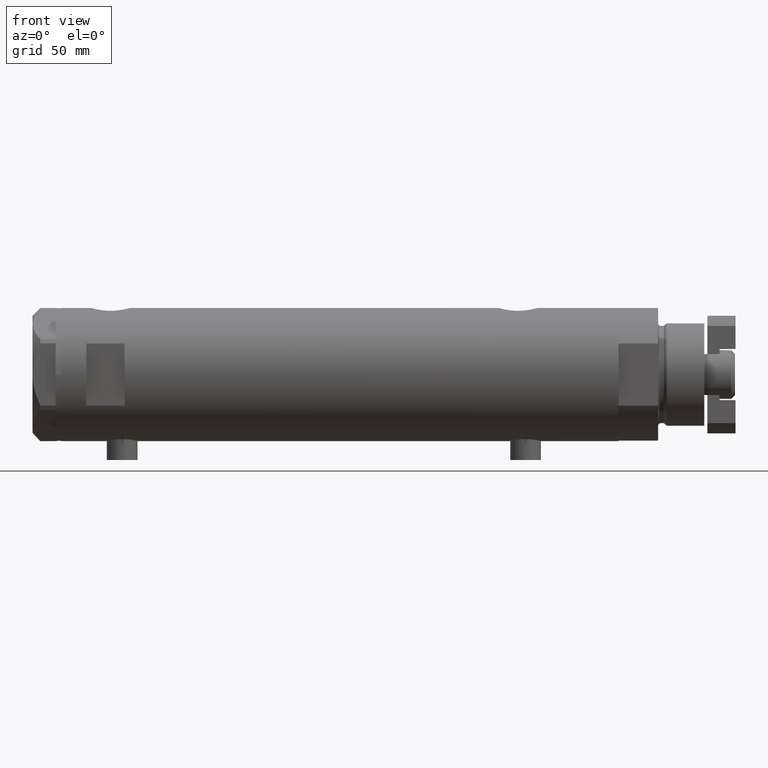
[diagram: clean part render]
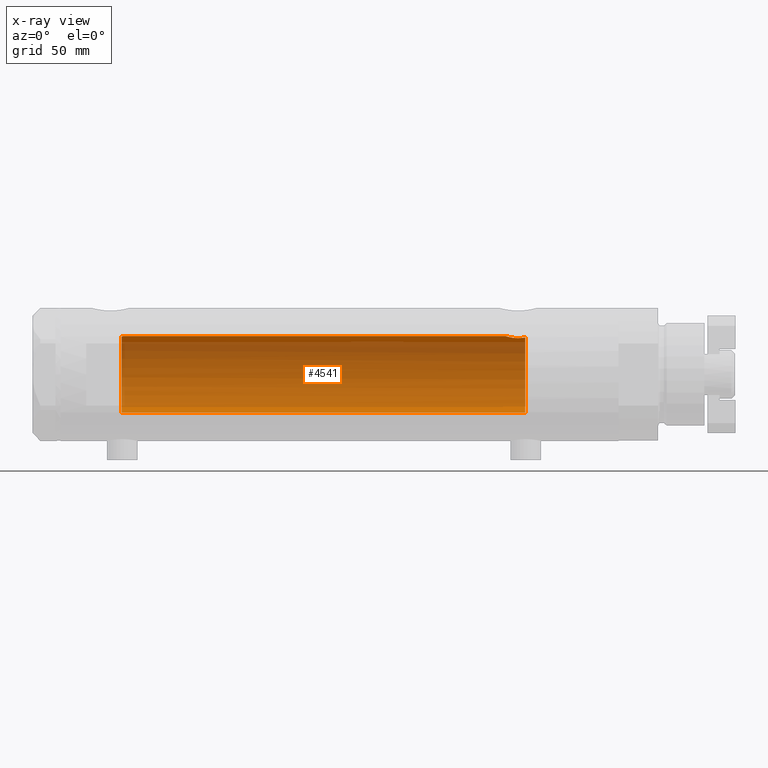
[diagram: x-ray — body ghosted, one internal face saturated and labeled with its STEP entity id]
A machine part, front view, then the same camera in x-ray: the body is ghosted and one INTERNAL B-rep face — a face not visible from any outside direction — is saturated and labeled: STEP entity #4541.
In plain terms, the highlighted cylindrical surface (partial cylindrical patch) has radius 15 mm, axis along (1, 0, -0).
Its self-contained STEP definition (entity closure, byte-faithful):
#4 = CARTESIAN_POINT ( 'NONE',  ( 14.25987224063200465, 4.654266980155758127, -68.31645838593742326 ) ) ;
#28 = CIRCLE ( 'NONE', #1285, 15.00000000000000000 ) ;
#58 = CARTESIAN_POINT ( 'NONE',  ( 15.00000000000000000, 1.836970198721029589E-15, 108.9499999999999886 ) ) ;
#98 = CARTESIAN_POINT ( 'NONE',  ( -15.00000000000000000, 0.000000000000000000, -72.54999999999999716 ) ) ;
#332 = CARTESIAN_POINT ( 'NONE',  ( 14.39420242489971358, 4.221147702577654037, -72.17871871185444377 ) ) ;
#592 = CARTESIAN_POINT ( 'NONE',  ( 14.81695028448457130, 2.344053258630414138, -65.48122781573721340 ) ) ;
#610 = CARTESIAN_POINT ( 'NONE',  ( 14.87714698525761214, 1.924825815456619571, 84.97761219789977361 ) ) ;
#691 = ORIENTED_EDGE ( 'NONE', *, *, #3594, .F. ) ;
#816 = AXIS2_PLACEMENT_3D ( 'NONE', #4240, #3015, #3039 ) ;
#910 = CARTESIAN_POINT ( 'NONE',  ( 14.19413554982521575, 4.851369549374614287, -69.17746179061400369 ) ) ;
#943 = CARTESIAN_POINT ( 'NONE',  ( 14.82638779339053947, 2.275571356824483082, 85.15000000000000568 ) ) ;
#1015 = VERTEX_POINT ( 'NONE', #98 ) ;
#1144 = CARTESIAN_POINT ( 'NONE',  ( -15.00000000000000000, 0.000000000000000000, 108.9499999999999886 ) ) ;
#1194 = CARTESIAN_POINT ( 'NONE',  ( 14.33334483745703025, 4.423389780079200584, -71.78724945987950434 ) ) ;
#1221 = CARTESIAN_POINT ( 'NONE',  ( 14.42780822725581125, 4.105572710089623101, -72.36940228115442153 ) ) ;
#1272 = CARTESIAN_POINT ( 'NONE',  ( 14.49939476291675078, 3.855488469592456280, -66.74998822577916258 ) ) ;
#1285 = AXIS2_PLACEMENT_3D ( 'NONE', #1375, #5006, #2047 ) ;
#1328 = CARTESIAN_POINT ( 'NONE',  ( 14.23996709707016173, 4.714409263334270683, -68.52876674044655658 ) ) ;
#1355 = B_SPLINE_CURVE_WITH_KNOTS ( 'NONE', 3,
 ( #5384, #1973, #610, #3218, #2802, #2756, #2340, #4947 ),
 .UNSPECIFIED., .F., .F.,
 ( 4, 2, 2, 4 ),
 ( 0.02826119741494477131, 0.02885214443185063482, 0.02944309144875649834, 0.03062498548256823577 ),
 .UNSPECIFIED. ) ;
#1375 = CARTESIAN_POINT ( 'NONE',  ( 0.000000000000000000, 0.000000000000000000, -72.54999999999999716 ) ) ;
#1387 = VECTOR ( 'NONE', #5515, 1000.000000000000000 ) ;
#1402 = CARTESIAN_POINT ( 'NONE',  ( 14.99509227038106118, 0.4430293709771145894, -64.90006686301529726 ) ) ;
#1454 = DIRECTION ( 'NONE',  ( -1.000000000000000000, 0.000000000000000000, 0.000000000000000000 ) ) ;
#1459 = CARTESIAN_POINT ( 'NONE',  ( 14.84719462287499780, 2.145357993387301931, -65.37798666051604357 ) ) ;
#1629 = CIRCLE ( 'NONE', #816, 15.00000000000000000 ) ;
#1692 = VERTEX_POINT ( 'NONE', #3663 ) ;
#1697 = LINE ( 'NONE', #1144, #1387 ) ;
#1721 = CARTESIAN_POINT ( 'NONE',  ( 15.00000000000000178, 0.2215872191885703835, -64.88500000000000512 ) ) ;
#1797 = DIRECTION ( 'NONE',  ( -0.000000000000000000, -0.000000000000000000, -1.000000000000000000 ) ) ;
#1924 = VERTEX_POINT ( 'NONE', #3829 ) ;
#1973 = CARTESIAN_POINT ( 'NONE',  ( 14.85285765243877343, 2.103108122960808402, 85.05873200114291421 ) ) ;
#2047 = DIRECTION ( 'NONE',  ( -1.000000000000000000, 0.000000000000000000, 0.000000000000000000 ) ) ;
#2106 = CARTESIAN_POINT ( 'NONE',  ( 14.46277203719950855, 3.978470183374510416, -72.54999999999999716 ) ) ;
#2175 = EDGE_CURVE ( 'NONE', #1015, #1692, #28, .T. ) ;
#2177 = CARTESIAN_POINT ( 'NONE',  ( 14.33601656325283358, 4.414747171699213268, -67.69405684818109137 ) ) ;
#2340 = CARTESIAN_POINT ( 'NONE',  ( 15.00000000000000533, 0.3998316629799377186, 84.58500000000003638 ) ) ;
#2469 = VERTEX_POINT ( 'NONE', #943 ) ;
#2600 = ORIENTED_EDGE ( 'NONE', *, *, #2711, .T. ) ;
#2638 = CARTESIAN_POINT ( 'NONE',  ( 14.19789541567449831, 4.839422427565549079, -70.29531557750244986 ) ) ;
#2651 = VECTOR ( 'NONE', #1797, 1000.000000000000000 ) ;
#2711 = EDGE_CURVE ( 'NONE', #3459, #1015, #1697, .T. ) ;
#2756 = CARTESIAN_POINT ( 'NONE',  ( 14.98404286071220781, 0.7911628595372716122, 84.63357750803341162 ) ) ;
#2802 = CARTESIAN_POINT ( 'NONE',  ( 14.93895715383719569, 1.365440931094927590, 84.77638192761230584 ) ) ;
#2939 = EDGE_CURVE ( 'NONE', #1924, #4312, #3940, .T. ) ;
#3015 = DIRECTION ( 'NONE',  ( 0.000000000000000000, 0.000000000000000000, 1.000000000000000000 ) ) ;
#3039 = DIRECTION ( 'NONE',  ( 1.000000000000000000, 0.000000000000000000, 0.000000000000000000 ) ) ;
#3053 = CARTESIAN_POINT ( 'NONE',  ( 14.72004460873233000, 2.909758128378253428, -65.82614485536704763 ) ) ;
#3194 = EDGE_CURVE ( 'NONE', #4312, #1692, #4533, .T. ) ;
#3218 = CARTESIAN_POINT ( 'NONE',  ( 14.92022334814851980, 1.556082286439816276, 84.83634472570265928 ) ) ;
#3456 = CARTESIAN_POINT ( 'NONE',  ( 14.18274079043653479, 4.883732009304972088, -69.63167541567706564 ) ) ;
#3459 = VERTEX_POINT ( 'NONE', #5329 ) ;
#3507 = AXIS2_PLACEMENT_3D ( 'NONE', #3635, #4026, #1454 ) ;
#3548 = CARTESIAN_POINT ( 'NONE',  ( 15.00000000000000000, 5.959273473684245944E-16, -64.88500000000000512 ) ) ;
#3565 = ORIENTED_EDGE ( 'NONE', *, *, #2939, .F. ) ;
#3594 = EDGE_CURVE ( 'NONE', #2469, #1924, #1355, .T. ) ;
#3635 = CARTESIAN_POINT ( 'NONE',  ( 0.000000000000000000, 0.000000000000000000, 108.9499999999999886 ) ) ;
#3642 = CARTESIAN_POINT ( 'NONE',  ( 14.97547159671690942, 0.8856171163179419326, -64.96107436056318818 ) ) ;
#3663 = CARTESIAN_POINT ( 'NONE',  ( 14.46277203719950855, 3.978470183374510416, -72.54999999999999716 ) ) ;
#3829 = CARTESIAN_POINT ( 'NONE',  ( 15.00000000000000000, 0.000000000000000000, 84.58500000000000796 ) ) ;
#3939 = CARTESIAN_POINT ( 'NONE',  ( 14.30778609824508329, 4.504821240468947607, -67.89964104205775186 ) ) ;
#3940 = LINE ( 'NONE', #58, #2651 ) ;
#3970 = CARTESIAN_POINT ( 'NONE',  ( 14.25831405531605078, 4.659025730769710272, -71.16798855846091953 ) ) ;
#4001 = EDGE_LOOP ( 'NONE', ( #3565, #691, #5188, #2600, #5457, #5117 ) ) ;
#4026 = DIRECTION ( 'NONE',  ( -0.000000000000000000, -0.000000000000000000, -1.000000000000000000 ) ) ;
#4053 = FACE_OUTER_BOUND ( 'NONE', #4001, .T. ) ;
#4096 = CARTESIAN_POINT ( 'NONE',  ( 14.96070684509190940, 1.105917936056764583, -65.00719211967314948 ) ) ;
#4240 = CARTESIAN_POINT ( 'NONE',  ( 0.000000000000000000, 0.000000000000000000, 85.15000000000000568 ) ) ;
#4312 = VERTEX_POINT ( 'NONE', #4937 ) ;
#4533 = B_SPLINE_CURVE_WITH_KNOTS ( 'NONE', 3,
 ( #3548, #1721, #1402, #3642, #4096, #4933, #4570, #1459, #592, #3053, #5151, #1272, #4789, #2177, #3939, #4, #1328, #910, #3456, #2638, #4763, #4818, #3970, #5449, #1194, #332, #1221, #2106 ),
 .UNSPECIFIED., .F., .F.,
 ( 4, 2, 2, 2, 2, 2, 2, 2, 2, 2, 2, 2, 2, 4 ),
 ( 0.01531448496322442530, 0.01597936247866479920, 0.01664423999410517135, 0.01730911750954554698, 0.01797399502498591914, 0.01930375005586666692, 0.02063350508674741471, 0.02129838260218779034, 0.02196326011762816249, 0.02329301514850894844, 0.02395789266394934142, 0.02462277017938973439, 0.02528764769483013083, 0.02595252521027052381 ),
 .UNSPECIFIED. ) ;
#4541 = ADVANCED_FACE ( 'NONE', ( #4053 ), #4564, .F. ) ;
#4564 = CYLINDRICAL_SURFACE ( 'NONE', #3507, 15.00000000000000000 ) ;
#4570 = CARTESIAN_POINT ( 'NONE',  ( 14.90012193493785375, 1.740148100968099243, -65.20148967824481190 ) ) ;
#4763 = CARTESIAN_POINT ( 'NONE',  ( 14.20808274384303616, 4.809639920165278859, -70.51496246579131366 ) ) ;
#4789 = CARTESIAN_POINT ( 'NONE',  ( 14.42796195111116830, 4.108450791336243135, -67.10736184290816198 ) ) ;
#4818 = CARTESIAN_POINT ( 'NONE',  ( 14.23822651595894762, 4.719656459720485309, -70.95110225956648264 ) ) ;
#4933 = CARTESIAN_POINT ( 'NONE',  ( 14.92306512695867227, 1.532295990539007446, -65.12730056478241636 ) ) ;
#4937 = CARTESIAN_POINT ( 'NONE',  ( 15.00000000000000000, 5.959273473684245944E-16, -64.88500000000000512 ) ) ;
#4947 = CARTESIAN_POINT ( 'NONE',  ( 15.00000000000000000, 0.000000000000000000, 84.58500000000000796 ) ) ;
#5006 = DIRECTION ( 'NONE',  ( 0.000000000000000000, 0.000000000000000000, -1.000000000000000000 ) ) ;
#5075 = EDGE_CURVE ( 'NONE', #2469, #3459, #1629, .T. ) ;
#5117 = ORIENTED_EDGE ( 'NONE', *, *, #3194, .F. ) ;
#5151 = CARTESIAN_POINT ( 'NONE',  ( 14.64710079709034929, 3.249565827911967020, -66.10237283776274353 ) ) ;
#5188 = ORIENTED_EDGE ( 'NONE', *, *, #5075, .T. ) ;
#5329 = CARTESIAN_POINT ( 'NONE',  ( -15.00000000000000000, 0.000000000000000000, 85.15000000000000568 ) ) ;
#5384 = CARTESIAN_POINT ( 'NONE',  ( 14.82638779339053947, 2.275571356824483082, 85.15000000000000568 ) ) ;
#5449 = CARTESIAN_POINT ( 'NONE',  ( 14.30582738521794894, 4.511024637967016915, -71.58517547595721453 ) ) ;
#5457 = ORIENTED_EDGE ( 'NONE', *, *, #2175, .T. ) ;
#5515 = DIRECTION ( 'NONE',  ( -0.000000000000000000, -0.000000000000000000, -1.000000000000000000 ) ) ;